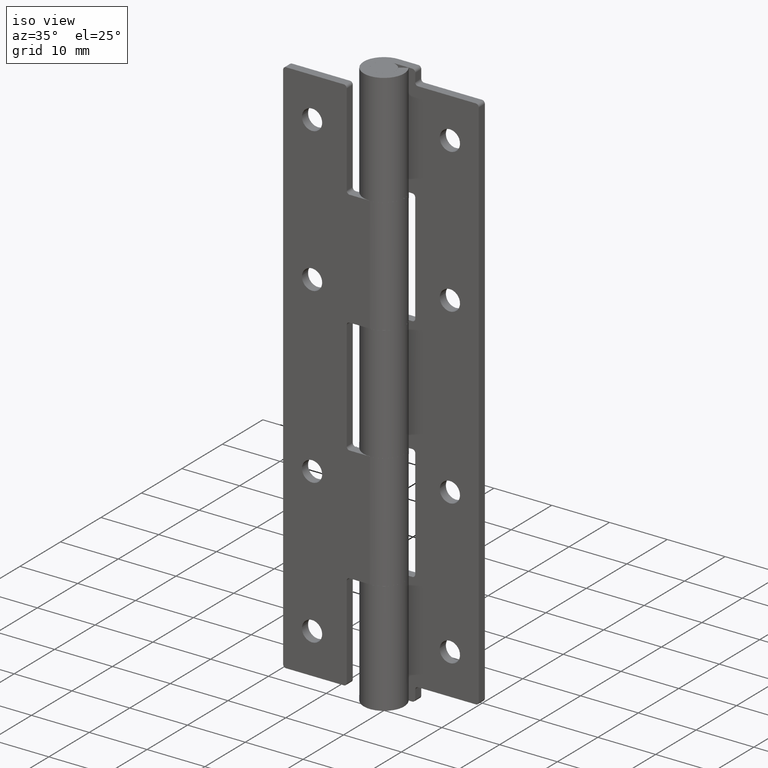
[diagram: clean part render]
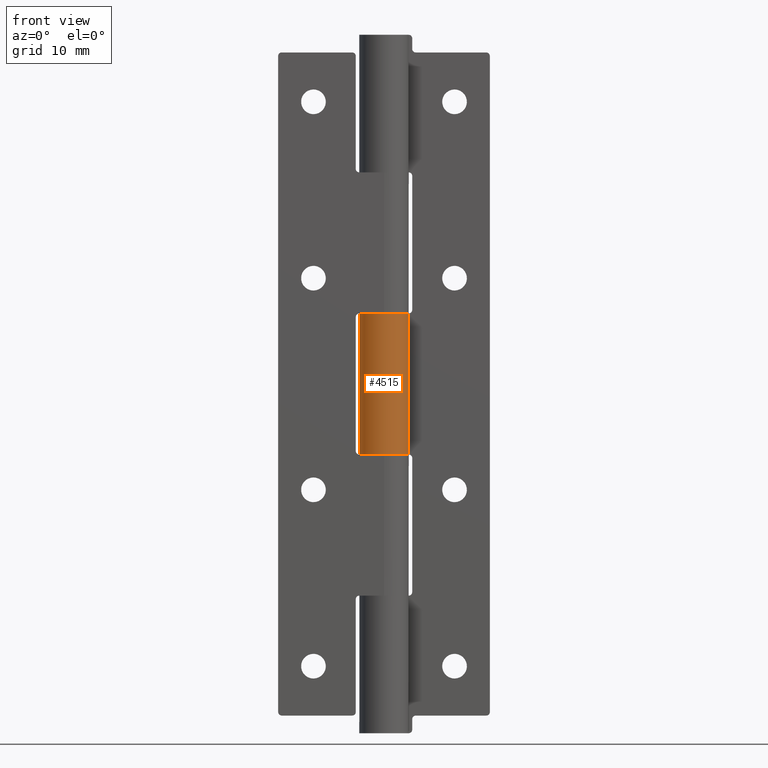
[diagram: tour spotlight — one face highlighted and labeled with its STEP entity id]
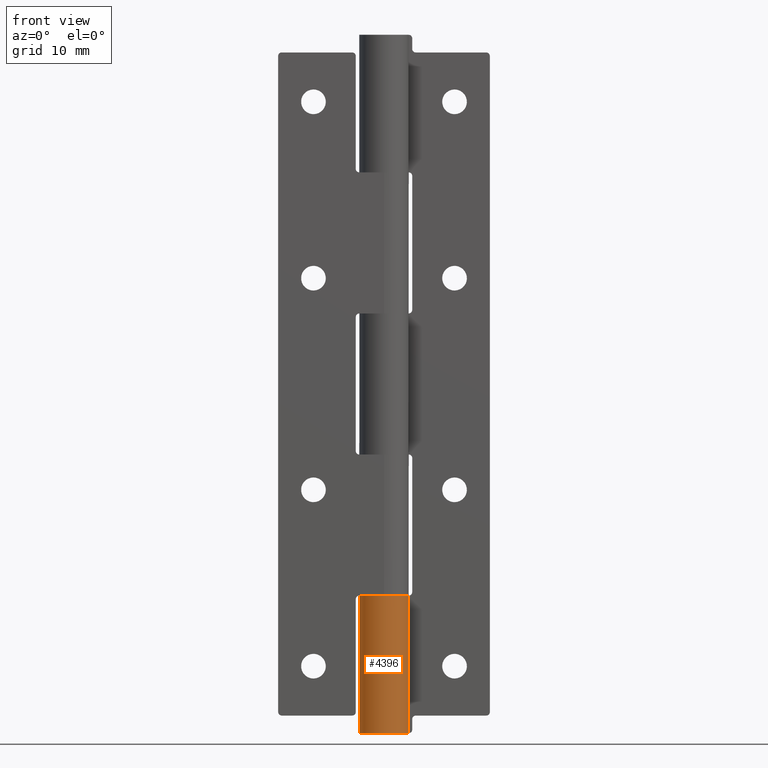
[diagram: tour spotlight — one face highlighted and labeled with its STEP entity id]
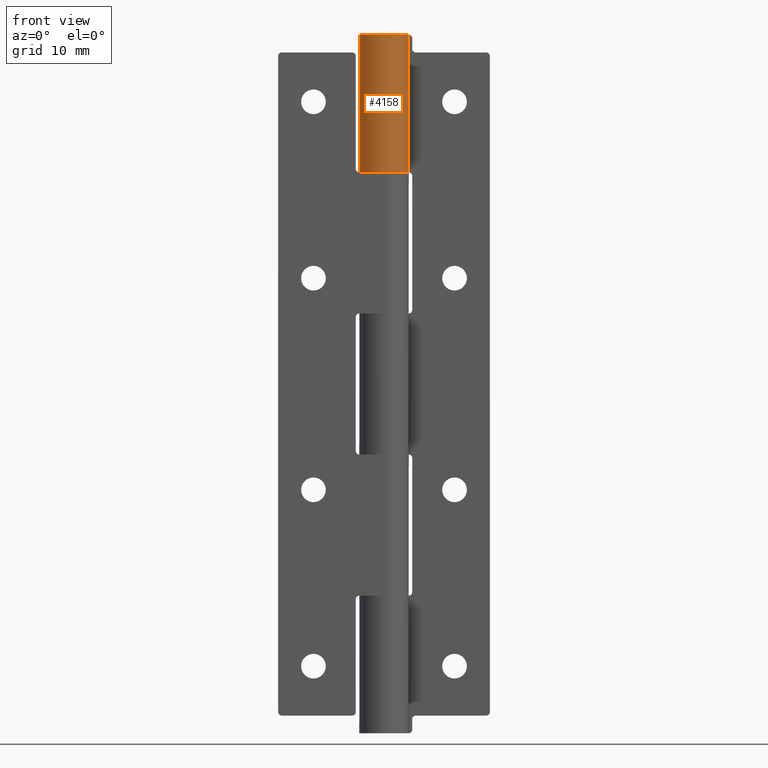
[diagram: tour spotlight — one face highlighted and labeled with its STEP entity id]
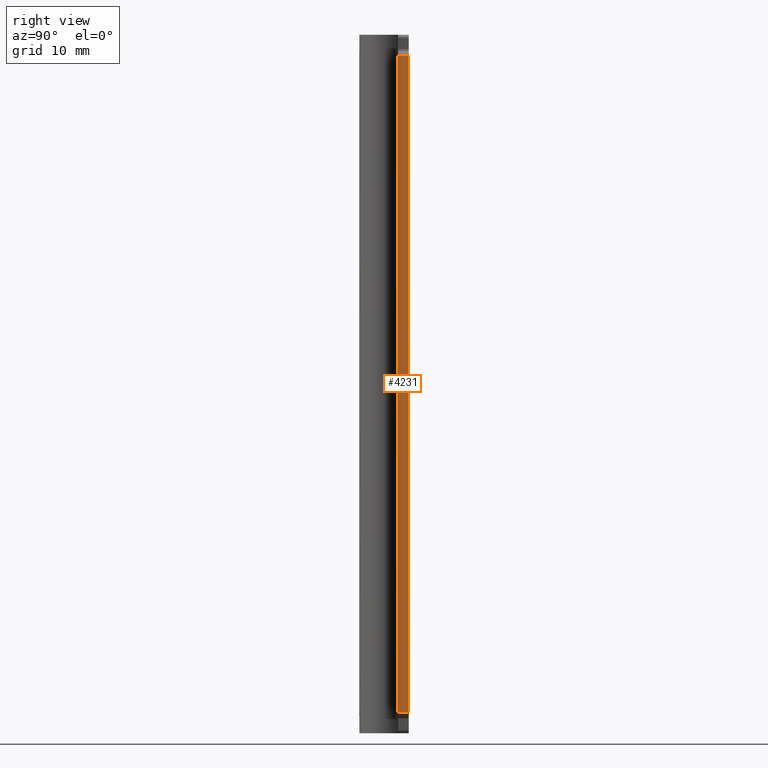
[diagram: tour spotlight — one face highlighted and labeled with its STEP entity id]
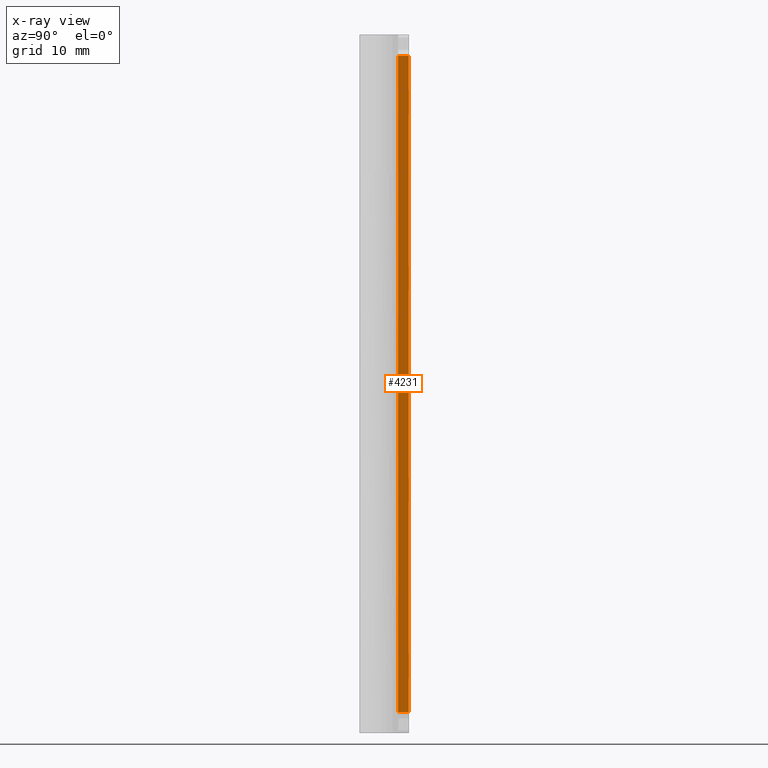
[diagram: x-ray of the same camera — body ghosted, this tour face saturated]
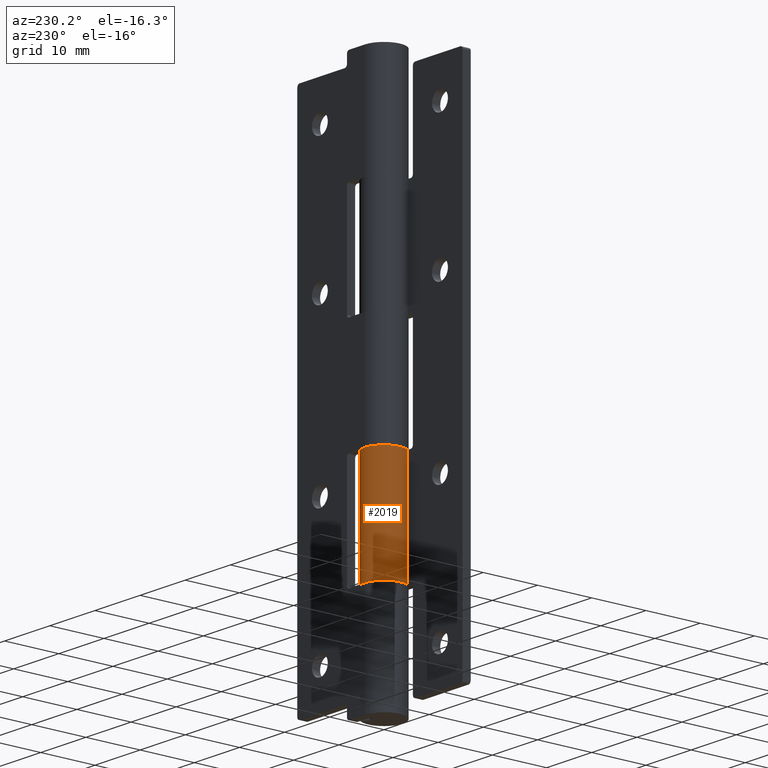
[diagram: tour spotlight — one face highlighted and labeled with its STEP entity id]
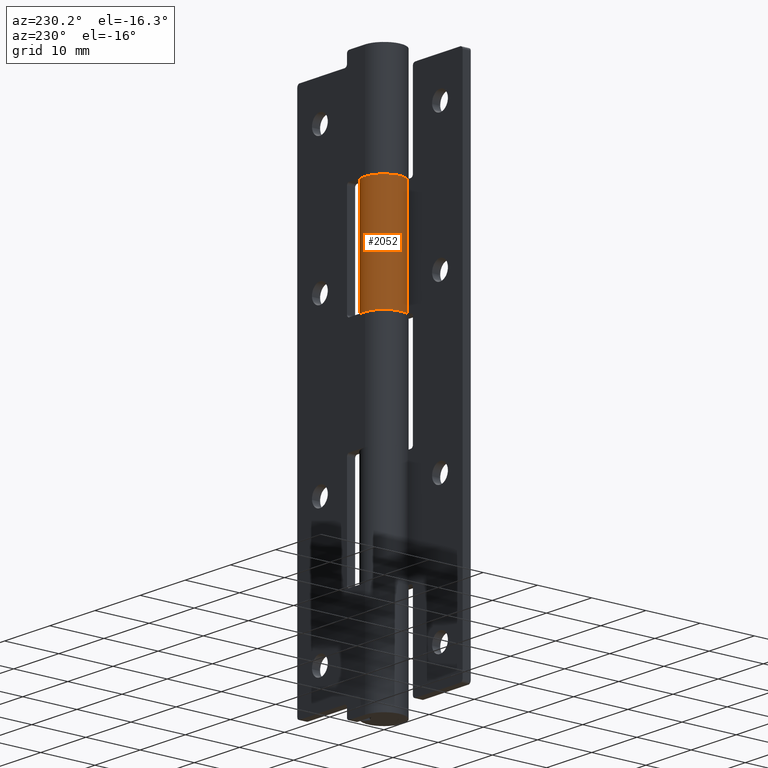
[diagram: tour spotlight — one face highlighted and labeled with its STEP entity id]
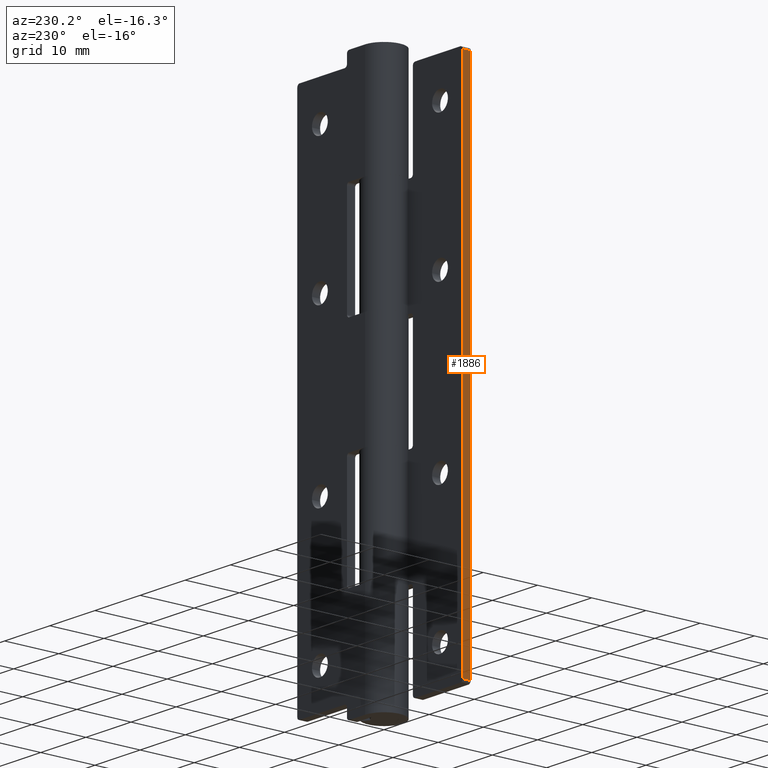
[diagram: tour spotlight — one face highlighted and labeled with its STEP entity id]
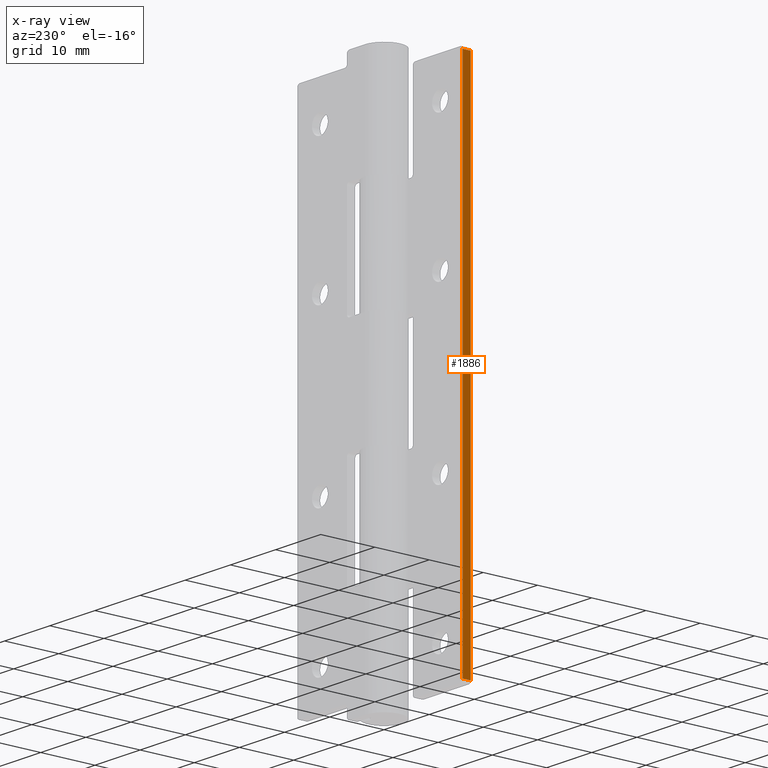
[diagram: x-ray of the same camera — body ghosted, this tour face saturated]
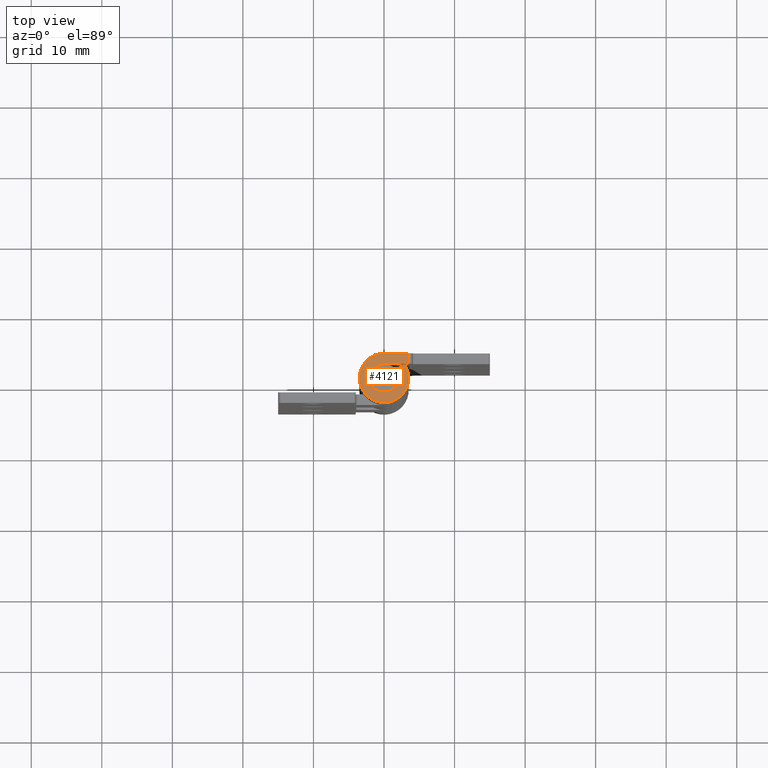
[diagram: tour spotlight — one face highlighted and labeled with its STEP entity id]
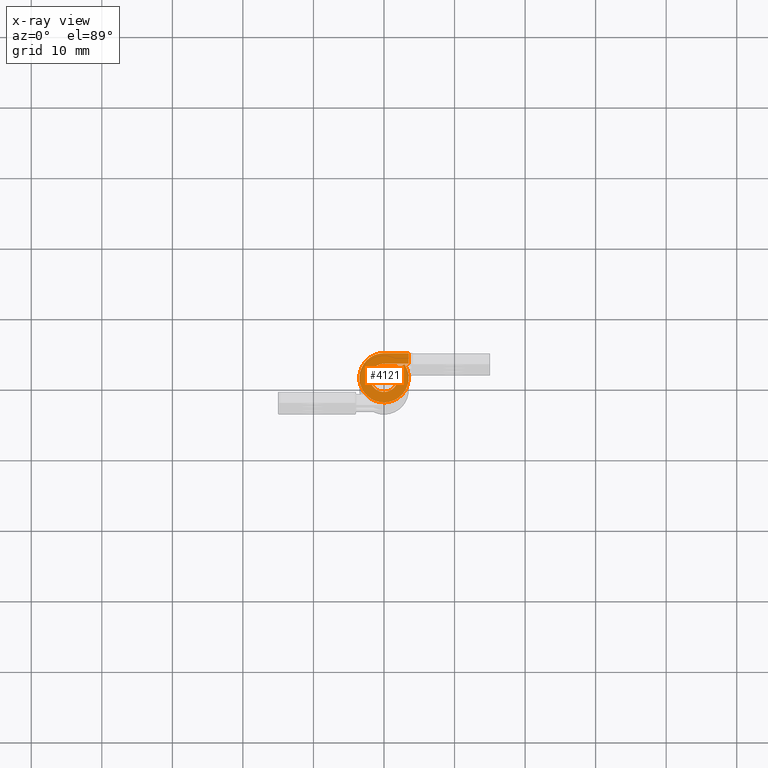
[diagram: x-ray of the same camera — body ghosted, this tour face saturated]
A machine part: a face-by-face anatomy tour. The part has 80 B-rep faces; the first image is the clean iso view, then the 8 largest visible faces are spotlighted one at a time (largest first), each with its STEP entity span.

Face 1 — front view, entity #4515. In plain terms, the highlighted face is a freeform B-spline surface patch.
Definition (entity closure, byte-faithful):
#3221=CARTESIAN_POINT('',(0.000000061086522,3.500000000000000,39.500000000000000));
#3222=VERTEX_POINT('',#3221);
#3257=CARTESIAN_POINT('',(2.906458325866725,1.950000000000000,39.500000000000000));
#3258=VERTEX_POINT('',#3257);
#3264=CARTESIAN_POINT('',(2.906458325866724,1.950000000000000,39.500000000000000));
#3265=CARTESIAN_POINT('',(4.428995679547648,-0.319328906691800,39.500000000000007));
#3266=CARTESIAN_POINT('',(2.596662629123979,-2.346772931178248,39.500000000000000));
#3267=CARTESIAN_POINT('',(0.764329578700308,-4.374216955664697,39.500000000000007));
#3268=CARTESIAN_POINT('',(-1.646966936150425,-3.088284298963954,39.500000000000000));
#3269=CARTESIAN_POINT('',(-4.058263451001157,-1.802351642263212,39.500000000000007));
#3270=CARTESIAN_POINT('',(-3.395511371337634,0.848824202716217,39.500000000000000));
#3271=CARTESIAN_POINT('',(-2.732759291674111,3.500000047695646,39.500000000000007));
#3272=CARTESIAN_POINT('',(0.000000061086521,3.500000000000000,39.500000000000000));
#3280=(BOUNDED_CURVE()B_SPLINE_CURVE(2,(#3264,#3265,#3266,#3267,#3268,#3269,#3270,#3271,#3272),.UNSPECIFIED.,.F.,.U.)B_SPLINE_CURVE_WITH_KNOTS((3,2,2,2,3),(0.0,0.250000000000000,0.500000000000000,0.750000000000000,1.0),.UNSPECIFIED.)CURVE()GEOMETRIC_REPRESENTATION_ITEM()RATIONAL_B_SPLINE_CURVE((1.0,0.788200857600339,1.0,0.788200857600339,1.0,0.788200857600339,1.0,0.788200857600339,1.0))REPRESENTATION_ITEM(''));
#3281=EDGE_CURVE('',#3258,#3222,#3280,.T.);
#3389=CARTESIAN_POINT('',(0.000000061086522,3.500000000000000,59.500000000000000));
#3390=VERTEX_POINT('',#3389);
#3396=CARTESIAN_POINT('',(2.906458325866725,1.950000000000000,59.500000000000000));
#3397=VERTEX_POINT('',#3396);
#3398=CARTESIAN_POINT('',(0.000000061086523,3.500000000000000,59.500000000000000));
#3399=CARTESIAN_POINT('',(-2.732759291674109,3.500000047695647,59.500000000000007));
#3400=CARTESIAN_POINT('',(-3.395511371337634,0.848824202716219,59.500000000000000));
#3401=CARTESIAN_POINT('',(-4.058263451001158,-1.802351642263212,59.500000000000007));
#3402=CARTESIAN_POINT('',(-1.646966936150424,-3.088284298963955,59.500000000000000));
#3403=CARTESIAN_POINT('',(0.764329578700309,-4.374216955664698,59.500000000000007));
#3404=CARTESIAN_POINT('',(2.596662629123979,-2.346772931178247,59.500000000000000));
#3405=CARTESIAN_POINT('',(4.428995679547648,-0.319328906691799,59.500000000000007));
#3406=CARTESIAN_POINT('',(2.906458325866723,1.950000000000001,59.500000000000000));
#3414=(BOUNDED_CURVE()B_SPLINE_CURVE(2,(#3398,#3399,#3400,#3401,#3402,#3403,#3404,#3405,#3406),.UNSPECIFIED.,.F.,.U.)B_SPLINE_CURVE_WITH_KNOTS((3,2,2,2,3),(0.0,0.250000000000000,0.500000000000000,0.750000000000000,1.0),.UNSPECIFIED.)CURVE()GEOMETRIC_REPRESENTATION_ITEM()RATIONAL_B_SPLINE_CURVE((1.0,0.788200857600339,1.0,0.788200857600339,1.0,0.788200857600339,1.0,0.788200857600339,1.0))REPRESENTATION_ITEM(''));
#3415=EDGE_CURVE('',#3390,#3397,#3414,.T.);
#4171=CARTESIAN_POINT('',(2.906458325866725,1.950000000000000,59.500000000000000));
#4172=CARTESIAN_POINT('',(2.906458325866725,1.950000000000000,39.500000000000000));
#4173=QUASI_UNIFORM_CURVE('',1,(#4171,#4172),.UNSPECIFIED.,.F.,.U.);
#4174=EDGE_CURVE('',#3397,#3258,#4173,.T.);
#4308=CARTESIAN_POINT('',(0.000000061086522,3.500000000000000,59.500000000000000));
#4309=CARTESIAN_POINT('',(0.000000061086522,3.500000000000000,39.500000000000000));
#4310=QUASI_UNIFORM_CURVE('',1,(#4308,#4309),.UNSPECIFIED.,.F.,.U.);
#4311=EDGE_CURVE('',#3390,#3222,#4310,.T.);
#4487=CARTESIAN_POINT('',(0.100263679686654,3.498563590180359,60.000000000000007));
#4488=CARTESIAN_POINT('',(0.100263679686654,3.498563590180359,38.987499999999997));
#4489=CARTESIAN_POINT('',(-4.324391348104696,3.625367686488793,60.000000000000007));
#4490=CARTESIAN_POINT('',(-4.324391348104696,3.625367686488793,38.987500000000004));
#4491=CARTESIAN_POINT('',(-3.427381751617110,-0.709263229472684,60.000000000000007));
#4492=CARTESIAN_POINT('',(-3.427381751617110,-0.709263229472684,38.987499999999997));
#4493=CARTESIAN_POINT('',(-2.530372155129526,-5.043894145434162,60.000000000000007));
#4494=CARTESIAN_POINT('',(-2.530372155129526,-5.043894145434162,38.987500000000004));
#4495=CARTESIAN_POINT('',(1.480553574345205,-3.171428875679482,60.000000000000007));
#4496=CARTESIAN_POINT('',(1.480553574345205,-3.171428875679482,38.987499999999997));
#4497=CARTESIAN_POINT('',(5.491479303819935,-1.298963605924803,60.000000000000007));
#4498=CARTESIAN_POINT('',(5.491479303819935,-1.298963605924803,38.987500000000004));
#4499=CARTESIAN_POINT('',(2.744503448160206,2.172026892797768,60.000000000000007));
#4500=CARTESIAN_POINT('',(2.744503448160206,2.172026892797768,38.987499999999997));
#4508=(BOUNDED_SURFACE()B_SPLINE_SURFACE(1,2,((#4487,#4489,#4491,#4493,#4495,#4497,#4499),(#4488,#4490,#4492,#4494,#4496,#4498,#4500)),.UNSPECIFIED.,.F.,.F.,.U.)B_SPLINE_SURFACE_WITH_KNOTS((2,2),(3,2,2,3),(0.0,21.012500000000010),(0.0,6.777915536387798,13.555831072775600,20.333746609163398),.UNSPECIFIED.)GEOMETRIC_REPRESENTATION_ITEM()RATIONAL_B_SPLINE_SURFACE(((1.0,0.620235491268260,1.0,0.620235491268260,1.0,0.620235491268260,1.0),(1.0,0.620235491268260,1.0,0.620235491268260,1.0,0.620235491268260,1.0)))REPRESENTATION_ITEM('')SURFACE());
#4509=ORIENTED_EDGE('',*,*,#3281,.F.);
#4510=ORIENTED_EDGE('',*,*,#4174,.F.);
#4511=ORIENTED_EDGE('',*,*,#3415,.F.);
#4512=ORIENTED_EDGE('',*,*,#4311,.T.);
#4513=EDGE_LOOP('',(#4509,#4510,#4511,#4512));
#4514=FACE_OUTER_BOUND('',#4513,.T.);
#4515=ADVANCED_FACE('',(#4514),#4508,.T.);

Face 2 — front view, entity #4396. In plain terms, the highlighted face is a freeform B-spline surface patch.
Definition (entity closure, byte-faithful):
#3319=CARTESIAN_POINT('',(0.000000061086522,3.500000000000000,19.500000000000000));
#3320=VERTEX_POINT('',#3319);
#3326=CARTESIAN_POINT('',(2.906458325866725,1.950000000000000,19.500000000000000));
#3327=VERTEX_POINT('',#3326);
#3328=CARTESIAN_POINT('',(0.000000061086523,3.500000000000000,19.500000000000000));
#3329=CARTESIAN_POINT('',(-2.732759291674109,3.500000047695647,19.500000000000004));
#3330=CARTESIAN_POINT('',(-3.395511371337634,0.848824202716219,19.500000000000000));
#3331=CARTESIAN_POINT('',(-4.058263451001158,-1.802351642263212,19.500000000000004));
#3332=CARTESIAN_POINT('',(-1.646966936150424,-3.088284298963955,19.500000000000000));
#3333=CARTESIAN_POINT('',(0.764329578700309,-4.374216955664698,19.500000000000004));
#3334=CARTESIAN_POINT('',(2.596662629123979,-2.346772931178247,19.500000000000000));
#3335=CARTESIAN_POINT('',(4.428995679547648,-0.319328906691799,19.500000000000004));
#3336=CARTESIAN_POINT('',(2.906458325866723,1.950000000000001,19.500000000000000));
#3344=(BOUNDED_CURVE()B_SPLINE_CURVE(2,(#3328,#3329,#3330,#3331,#3332,#3333,#3334,#3335,#3336),.UNSPECIFIED.,.F.,.U.)B_SPLINE_CURVE_WITH_KNOTS((3,2,2,2,3),(0.0,0.250000000000000,0.500000000000000,0.750000000000000,1.0),.UNSPECIFIED.)CURVE()GEOMETRIC_REPRESENTATION_ITEM()RATIONAL_B_SPLINE_CURVE((1.0,0.788200857600339,1.0,0.788200857600339,1.0,0.788200857600339,1.0,0.788200857600339,1.0))REPRESENTATION_ITEM(''));
#3345=EDGE_CURVE('',#3320,#3327,#3344,.T.);
#3987=CARTESIAN_POINT('',(0.000000061086522,3.500000000000000,0.0));
#3988=VERTEX_POINT('',#3987);
#4023=CARTESIAN_POINT('',(2.906458325866725,1.950000000000000,0.0));
#4024=VERTEX_POINT('',#4023);
#4030=CARTESIAN_POINT('',(2.906458325866724,1.950000000000000,0.0));
#4031=CARTESIAN_POINT('',(4.428995679547648,-0.319328906691800,0.0));
#4032=CARTESIAN_POINT('',(2.596662629123979,-2.346772931178248,0.0));
#4033=CARTESIAN_POINT('',(0.764329578700308,-4.374216955664697,0.0));
#4034=CARTESIAN_POINT('',(-1.646966936150425,-3.088284298963954,0.0));
#4035=CARTESIAN_POINT('',(-4.058263451001157,-1.802351642263212,0.0));
#4036=CARTESIAN_POINT('',(-3.395511371337634,0.848824202716217,0.0));
#4037=CARTESIAN_POINT('',(-2.732759291674111,3.500000047695646,0.0));
#4038=CARTESIAN_POINT('',(0.000000061086521,3.500000000000000,0.0));
#4046=(BOUNDED_CURVE()B_SPLINE_CURVE(2,(#4030,#4031,#4032,#4033,#4034,#4035,#4036,#4037,#4038),.UNSPECIFIED.,.F.,.U.)B_SPLINE_CURVE_WITH_KNOTS((3,2,2,2,3),(0.0,0.250000000000000,0.500000000000000,0.750000000000000,1.0),.UNSPECIFIED.)CURVE()GEOMETRIC_REPRESENTATION_ITEM()RATIONAL_B_SPLINE_CURVE((1.0,0.788200857600339,1.0,0.788200857600339,1.0,0.788200857600339,1.0,0.788200857600339,1.0))REPRESENTATION_ITEM(''));
#4047=EDGE_CURVE('',#4024,#3988,#4046,.T.);
#4332=CARTESIAN_POINT('',(0.000000061086522,3.500000000000000,19.500000000000000));
#4333=CARTESIAN_POINT('',(0.000000061086522,3.500000000000000,0.0));
#4334=QUASI_UNIFORM_CURVE('',1,(#4332,#4333),.UNSPECIFIED.,.F.,.U.);
#4335=EDGE_CURVE('',#3320,#3988,#4334,.T.);
#4364=CARTESIAN_POINT('',(0.100263679686654,3.498563590180359,19.987500000000001));
#4365=CARTESIAN_POINT('',(0.100263679686654,3.498563590180359,-0.499687500000000));
#4366=CARTESIAN_POINT('',(-4.324391348104696,3.625367686488793,19.987500000000004));
#4367=CARTESIAN_POINT('',(-4.324391348104696,3.625367686488793,-0.499687500000000));
#4368=CARTESIAN_POINT('',(-3.427381751617110,-0.709263229472684,19.987500000000001));
#4369=CARTESIAN_POINT('',(-3.427381751617110,-0.709263229472684,-0.499687500000000));
#4370=CARTESIAN_POINT('',(-2.530372155129526,-5.043894145434162,19.987500000000004));
#4371=CARTESIAN_POINT('',(-2.530372155129526,-5.043894145434162,-0.499687500000000));
#4372=CARTESIAN_POINT('',(1.480553574345205,-3.171428875679482,19.987500000000001));
#4373=CARTESIAN_POINT('',(1.480553574345205,-3.171428875679482,-0.499687500000000));
#4374=CARTESIAN_POINT('',(5.491479303819935,-1.298963605924803,19.987500000000004));
#4375=CARTESIAN_POINT('',(5.491479303819935,-1.298963605924803,-0.499687500000000));
#4376=CARTESIAN_POINT('',(2.744503448160206,2.172026892797768,19.987500000000001));
#4377=CARTESIAN_POINT('',(2.744503448160206,2.172026892797768,-0.499687500000000));
#4385=(BOUNDED_SURFACE()B_SPLINE_SURFACE(1,2,((#4364,#4366,#4368,#4370,#4372,#4374,#4376),(#4365,#4367,#4369,#4371,#4373,#4375,#4377)),.UNSPECIFIED.,.F.,.F.,.U.)B_SPLINE_SURFACE_WITH_KNOTS((2,2),(3,2,2,3),(0.0,20.487187500000012),(0.0,6.777915536387798,13.555831072775600,20.333746609163398),.UNSPECIFIED.)GEOMETRIC_REPRESENTATION_ITEM()RATIONAL_B_SPLINE_SURFACE(((1.0,0.620235491268260,1.0,0.620235491268260,1.0,0.620235491268260,1.0),(1.0,0.620235491268260,1.0,0.620235491268260,1.0,0.620235491268260,1.0)))REPRESENTATION_ITEM('')SURFACE());
#4386=CARTESIAN_POINT('',(2.906458325866725,1.950000000000000,19.500000000000000));
#4387=CARTESIAN_POINT('',(2.906458325866725,1.950000000000000,0.0));
#4388=QUASI_UNIFORM_CURVE('',1,(#4386,#4387),.UNSPECIFIED.,.F.,.U.);
#4389=EDGE_CURVE('',#3327,#4024,#4388,.T.);
#4390=ORIENTED_EDGE('',*,*,#4389,.F.);
#4391=ORIENTED_EDGE('',*,*,#3345,.F.);
#4392=ORIENTED_EDGE('',*,*,#4335,.T.);
#4393=ORIENTED_EDGE('',*,*,#4047,.F.);
#4394=EDGE_LOOP('',(#4390,#4391,#4392,#4393));
#4395=FACE_OUTER_BOUND('',#4394,.T.);
#4396=ADVANCED_FACE('',(#4395),#4385,.T.);

Face 3 — front view, entity #4158. In plain terms, the highlighted face is a freeform B-spline surface patch.
Definition (entity closure, byte-faithful):
#3471=CARTESIAN_POINT('',(0.0,3.500000000000000,79.500000000000000));
#3472=VERTEX_POINT('',#3471);
#3507=CARTESIAN_POINT('',(2.906458325866725,1.950000000000000,79.500000000000000));
#3508=VERTEX_POINT('',#3507);
#3514=CARTESIAN_POINT('',(2.906458325866724,1.950000000000000,79.500000000000000));
#3515=CARTESIAN_POINT('',(4.428995672699894,-0.319328896485281,79.500000000000014));
#3516=CARTESIAN_POINT('',(2.596662639363708,-2.346772919848170,79.500000000000000));
#3517=CARTESIAN_POINT('',(0.764329606027520,-4.374216943211062,79.500000000000014));
#3518=CARTESIAN_POINT('',(-1.646966909200061,-3.088284313336452,79.500000000000000));
#3519=CARTESIAN_POINT('',(-4.058263424427635,-1.802351683461845,79.500000000000014));
#3520=CARTESIAN_POINT('',(-3.395511382448717,0.848824158269075,79.500000000000000));
#3521=CARTESIAN_POINT('',(-2.732759340469795,3.500000000000000,79.500000000000014));
#3522=CARTESIAN_POINT('',(0.0,3.500000000000000,79.500000000000000));
#3530=(BOUNDED_CURVE()B_SPLINE_CURVE(2,(#3514,#3515,#3516,#3517,#3518,#3519,#3520,#3521,#3522),.UNSPECIFIED.,.F.,.U.)B_SPLINE_CURVE_WITH_KNOTS((3,2,2,2,3),(0.0,0.250000000000000,0.500000000000000,0.750000000000000,1.0),.UNSPECIFIED.)CURVE()GEOMETRIC_REPRESENTATION_ITEM()RATIONAL_B_SPLINE_CURVE((1.0,0.788200858942973,1.0,0.788200858942973,1.0,0.788200858942973,1.0,0.788200858942973,1.0))REPRESENTATION_ITEM(''));
#3531=EDGE_CURVE('',#3508,#3472,#3530,.T.);
#4065=CARTESIAN_POINT('',(0.000000061086522,3.500000000000000,99.0));
#4066=VERTEX_POINT('',#4065);
#4072=CARTESIAN_POINT('',(2.906458325866725,1.950000000000000,99.0));
#4073=VERTEX_POINT('',#4072);
#4074=CARTESIAN_POINT('',(2.906458325866724,1.950000000000000,99.0));
#4075=CARTESIAN_POINT('',(4.428995679547648,-0.319328906691800,99.0));
#4076=CARTESIAN_POINT('',(2.596662629123979,-2.346772931178248,99.0));
#4077=CARTESIAN_POINT('',(0.764329578700308,-4.374216955664697,99.0));
#4078=CARTESIAN_POINT('',(-1.646966936150425,-3.088284298963954,99.0));
#4079=CARTESIAN_POINT('',(-4.058263451001157,-1.802351642263212,99.0));
#4080=CARTESIAN_POINT('',(-3.395511371337634,0.848824202716217,99.0));
#4081=CARTESIAN_POINT('',(-2.732759291674111,3.500000047695646,99.0));
#4082=CARTESIAN_POINT('',(0.000000061086521,3.500000000000000,99.0));
#4090=(BOUNDED_CURVE()B_SPLINE_CURVE(2,(#4074,#4075,#4076,#4077,#4078,#4079,#4080,#4081,#4082),.UNSPECIFIED.,.F.,.U.)B_SPLINE_CURVE_WITH_KNOTS((3,2,2,2,3),(0.0,0.250000000000000,0.500000000000000,0.750000000000000,1.0),.UNSPECIFIED.)CURVE()GEOMETRIC_REPRESENTATION_ITEM()RATIONAL_B_SPLINE_CURVE((1.0,0.788200857600339,1.0,0.788200857600339,1.0,0.788200857600339,1.0,0.788200857600339,1.0))REPRESENTATION_ITEM(''));
#4091=EDGE_CURVE('',#4073,#4066,#4090,.T.);
#4122=CARTESIAN_POINT('',(0.100263679686654,3.498563590180359,99.487500000000011));
#4123=CARTESIAN_POINT('',(0.100263679686654,3.498563590180359,79.000312499999978));
#4124=CARTESIAN_POINT('',(-4.324391348104696,3.625367686488793,99.487500000000011));
#4125=CARTESIAN_POINT('',(-4.324391348104696,3.625367686488793,79.000312499999978));
#4126=CARTESIAN_POINT('',(-3.427381751617110,-0.709263229472684,99.487500000000011));
#4127=CARTESIAN_POINT('',(-3.427381751617110,-0.709263229472684,79.000312499999978));
#4128=CARTESIAN_POINT('',(-2.530372155129526,-5.043894145434162,99.487500000000011));
#4129=CARTESIAN_POINT('',(-2.530372155129526,-5.043894145434162,79.000312499999978));
#4130=CARTESIAN_POINT('',(1.480553574345205,-3.171428875679482,99.487500000000011));
#4131=CARTESIAN_POINT('',(1.480553574345205,-3.171428875679482,79.000312499999978));
#4132=CARTESIAN_POINT('',(5.491479303819935,-1.298963605924803,99.487500000000011));
#4133=CARTESIAN_POINT('',(5.491479303819935,-1.298963605924803,79.000312499999978));
#4134=CARTESIAN_POINT('',(2.744503448160206,2.172026892797768,99.487500000000011));
#4135=CARTESIAN_POINT('',(2.744503448160206,2.172026892797768,79.000312499999978));
#4143=(BOUNDED_SURFACE()B_SPLINE_SURFACE(1,2,((#4122,#4124,#4126,#4128,#4130,#4132,#4134),(#4123,#4125,#4127,#4129,#4131,#4133,#4135)),.UNSPECIFIED.,.F.,.F.,.U.)B_SPLINE_SURFACE_WITH_KNOTS((2,2),(3,2,2,3),(0.0,20.487187500000029),(0.0,6.777915536387798,13.555831072775600,20.333746609163398),.UNSPECIFIED.)GEOMETRIC_REPRESENTATION_ITEM()RATIONAL_B_SPLINE_SURFACE(((1.0,0.620235491268260,1.0,0.620235491268260,1.0,0.620235491268260,1.0),(1.0,0.620235491268260,1.0,0.620235491268260,1.0,0.620235491268260,1.0)))REPRESENTATION_ITEM('')SURFACE());
#4144=CARTESIAN_POINT('',(0.000000061086522,3.500000000000000,99.0));
#4145=CARTESIAN_POINT('',(0.0,3.500000000000000,79.500000000000000));
#4146=QUASI_UNIFORM_CURVE('',1,(#4144,#4145),.UNSPECIFIED.,.F.,.U.);
#4147=EDGE_CURVE('',#4066,#3472,#4146,.T.);
#4148=ORIENTED_EDGE('',*,*,#4147,.T.);
#4149=ORIENTED_EDGE('',*,*,#3531,.F.);
#4150=CARTESIAN_POINT('',(2.906458325866725,1.950000000000000,99.0));
#4151=CARTESIAN_POINT('',(2.906458325866725,1.950000000000000,79.500000000000000));
#4152=QUASI_UNIFORM_CURVE('',1,(#4150,#4151),.UNSPECIFIED.,.F.,.U.);
#4153=EDGE_CURVE('',#4073,#3508,#4152,.T.);
#4154=ORIENTED_EDGE('',*,*,#4153,.F.);
#4155=ORIENTED_EDGE('',*,*,#4091,.T.);
#4156=EDGE_LOOP('',(#4148,#4149,#4154,#4155));
#4157=FACE_OUTER_BOUND('',#4156,.T.);
#4158=ADVANCED_FACE('',(#4157),#4143,.T.);

Face 4 — right view, entity #4231. An x-ray twin of the same camera follows (body ghosted, this face saturated) — the face is partly hidden behind the body. In plain terms, the highlighted face is a freeform B-spline surface patch.
Definition (entity closure, byte-faithful):
#3550=CARTESIAN_POINT('',(14.999999999999799,2.0,96.0));
#3551=VERTEX_POINT('',#3550);
#3567=CARTESIAN_POINT('',(14.999999999999799,3.500000000000000,96.0));
#3568=VERTEX_POINT('',#3567);
#3569=CARTESIAN_POINT('',(14.999999999999799,3.500000000000000,96.0));
#3570=CARTESIAN_POINT('',(14.999999999999799,2.0,96.0));
#3571=QUASI_UNIFORM_CURVE('',1,(#3569,#3570),.UNSPECIFIED.,.F.,.U.);
#3572=EDGE_CURVE('',#3568,#3551,#3571,.T.);
#3857=CARTESIAN_POINT('',(14.999999999999799,2.0,3.0));
#3858=VERTEX_POINT('',#3857);
#3879=CARTESIAN_POINT('',(14.999999999999799,3.500000000000000,3.0));
#3880=VERTEX_POINT('',#3879);
#3894=CARTESIAN_POINT('',(14.999999999999799,2.0,3.0));
#3895=CARTESIAN_POINT('',(14.999999999999799,3.500000000000000,3.0));
#3896=QUASI_UNIFORM_CURVE('',1,(#3894,#3895),.UNSPECIFIED.,.F.,.U.);
#3897=EDGE_CURVE('',#3858,#3880,#3896,.T.);
#4212=CARTESIAN_POINT('',(14.999999999999799,1.925075002907291,100.645349819748010));
#4213=CARTESIAN_POINT('',(14.999999999999799,1.925075002907291,-1.645352314202334));
#4214=CARTESIAN_POINT('',(14.999999999999799,3.574925037325845,100.645349819748010));
#4215=CARTESIAN_POINT('',(14.999999999999799,3.574925037325845,-1.645352314202334));
#4216=B_SPLINE_SURFACE_WITH_KNOTS('',1,1,((#4212,#4214),(#4213,#4215)),.UNSPECIFIED.,.F.,.F.,.U.,(2,2),(2,2),(0.0,102.290702133950300),(0.041708334948495,0.958291687403247),.UNSPECIFIED.);
#4217=CARTESIAN_POINT('',(14.999999999999799,3.500000000000000,96.0));
#4218=CARTESIAN_POINT('',(14.999999999999799,3.500000000000000,3.0));
#4219=QUASI_UNIFORM_CURVE('',1,(#4217,#4218),.UNSPECIFIED.,.F.,.U.);
#4220=EDGE_CURVE('',#3568,#3880,#4219,.T.);
#4221=ORIENTED_EDGE('',*,*,#4220,.F.);
#4222=ORIENTED_EDGE('',*,*,#3572,.T.);
#4223=CARTESIAN_POINT('',(14.999999999999799,2.0,96.0));
#4224=CARTESIAN_POINT('',(14.999999999999799,2.0,3.0));
#4225=QUASI_UNIFORM_CURVE('',1,(#4223,#4224),.UNSPECIFIED.,.F.,.U.);
#4226=EDGE_CURVE('',#3551,#3858,#4225,.T.);
#4227=ORIENTED_EDGE('',*,*,#4226,.T.);
#4228=ORIENTED_EDGE('',*,*,#3897,.T.);
#4229=EDGE_LOOP('',(#4221,#4222,#4227,#4228));
#4230=FACE_OUTER_BOUND('',#4229,.T.);
#4231=ADVANCED_FACE('',(#4230),#4216,.T.);

Face 5 — auxiliary view, entity #2019. In plain terms, the highlighted face is a freeform B-spline surface patch.
Definition (entity closure, byte-faithful):
#1540=CARTESIAN_POINT('',(0.0,-3.499999999999950,39.500000000000000));
#1541=VERTEX_POINT('',#1540);
#1547=CARTESIAN_POINT('',(-2.906458325866725,-1.950000000000000,39.500000000000000));
#1548=VERTEX_POINT('',#1547);
#1549=CARTESIAN_POINT('',(-2.906458325866723,-1.950000000000003,39.500000000000000));
#1550=CARTESIAN_POINT('',(-4.428995672699895,0.319328896485279,39.500000000000000));
#1551=CARTESIAN_POINT('',(-2.596662639363708,2.346772919848169,39.500000000000000));
#1552=CARTESIAN_POINT('',(-0.764329606027522,4.374216943211060,39.500000000000000));
#1553=CARTESIAN_POINT('',(1.646966909200059,3.088284313336453,39.500000000000000));
#1554=CARTESIAN_POINT('',(4.058263424427638,1.802351683461846,39.500000000000000));
#1555=CARTESIAN_POINT('',(3.395511382448717,-0.848824158269075,39.500000000000000));
#1556=CARTESIAN_POINT('',(2.732759340469795,-3.500000000000000,39.500000000000000));
#1557=CARTESIAN_POINT('',(0.0,-3.500000000000000,39.500000000000000));
#1565=(BOUNDED_CURVE()B_SPLINE_CURVE(2,(#1549,#1550,#1551,#1552,#1553,#1554,#1555,#1556,#1557),.UNSPECIFIED.,.F.,.U.)B_SPLINE_CURVE_WITH_KNOTS((3,2,2,2,3),(0.0,0.250000000000000,0.500000000000000,0.750000000000000,1.0),.UNSPECIFIED.)CURVE()GEOMETRIC_REPRESENTATION_ITEM()RATIONAL_B_SPLINE_CURVE((1.0,0.788200858942973,1.0,0.788200858942973,1.0,0.788200858942973,1.0,0.788200858942973,1.0))REPRESENTATION_ITEM(''));
#1566=EDGE_CURVE('',#1548,#1541,#1565,.T.);
#1782=CARTESIAN_POINT('',(0.0,-3.499999999999950,19.500000000000000));
#1783=VERTEX_POINT('',#1782);
#1818=CARTESIAN_POINT('',(-2.906458325866725,-1.950000000000000,19.500000000000000));
#1819=VERTEX_POINT('',#1818);
#1825=CARTESIAN_POINT('',(0.0,-3.499999999999950,19.500000000000000));
#1826=CARTESIAN_POINT('',(2.732759340469792,-3.500000000000000,19.500000000000004));
#1827=CARTESIAN_POINT('',(3.395511382448716,-0.848824158269080,19.500000000000000));
#1828=CARTESIAN_POINT('',(4.058263424427640,1.802351683461841,19.500000000000004));
#1829=CARTESIAN_POINT('',(1.646966909200063,3.088284313336451,19.500000000000000));
#1830=CARTESIAN_POINT('',(-0.764329606027517,4.374216943211062,19.500000000000004));
#1831=CARTESIAN_POINT('',(-2.596662639363706,2.346772919848171,19.500000000000000));
#1832=CARTESIAN_POINT('',(-4.428995672699894,0.319328896485283,19.500000000000004));
#1833=CARTESIAN_POINT('',(-2.906458325866725,-1.949999999999999,19.500000000000000));
#1841=(BOUNDED_CURVE()B_SPLINE_CURVE(2,(#1825,#1826,#1827,#1828,#1829,#1830,#1831,#1832,#1833),.UNSPECIFIED.,.F.,.U.)B_SPLINE_CURVE_WITH_KNOTS((3,2,2,2,3),(0.0,0.250000000000000,0.500000000000000,0.750000000000000,1.0),.UNSPECIFIED.)CURVE()GEOMETRIC_REPRESENTATION_ITEM()RATIONAL_B_SPLINE_CURVE((1.0,0.788200858942973,1.0,0.788200858942973,1.0,0.788200858942973,1.0,0.788200858942973,1.0))REPRESENTATION_ITEM(''));
#1842=EDGE_CURVE('',#1783,#1819,#1841,.T.);
#1937=CARTESIAN_POINT('',(0.0,-3.499999999999950,39.500000000000000));
#1938=CARTESIAN_POINT('',(0.0,-3.499999999999950,19.500000000000000));
#1939=QUASI_UNIFORM_CURVE('',1,(#1937,#1938),.UNSPECIFIED.,.F.,.U.);
#1940=EDGE_CURVE('',#1541,#1783,#1939,.T.);
#1987=CARTESIAN_POINT('',(-0.100263679686654,-3.498563590180359,40.0));
#1988=CARTESIAN_POINT('',(-0.100263679686654,-3.498563590180359,18.987500000000001));
#1989=CARTESIAN_POINT('',(4.324391348104696,-3.625367686488793,40.0));
#1990=CARTESIAN_POINT('',(4.324391348104696,-3.625367686488793,18.987500000000004));
#1991=CARTESIAN_POINT('',(3.427381751617110,0.709263229472684,40.0));
#1992=CARTESIAN_POINT('',(3.427381751617110,0.709263229472684,18.987500000000001));
#1993=CARTESIAN_POINT('',(2.530372155129526,5.043894145434162,40.0));
#1994=CARTESIAN_POINT('',(2.530372155129526,5.043894145434162,18.987500000000004));
#1995=CARTESIAN_POINT('',(-1.480553574345205,3.171428875679482,40.0));
#1996=CARTESIAN_POINT('',(-1.480553574345205,3.171428875679482,18.987500000000001));
#1997=CARTESIAN_POINT('',(-5.491479303819935,1.298963605924803,40.0));
#1998=CARTESIAN_POINT('',(-5.491479303819935,1.298963605924803,18.987500000000004));
#1999=CARTESIAN_POINT('',(-2.744503448160206,-2.172026892797768,40.0));
#2000=CARTESIAN_POINT('',(-2.744503448160206,-2.172026892797768,18.987500000000001));
#2008=(BOUNDED_SURFACE()B_SPLINE_SURFACE(1,2,((#1987,#1989,#1991,#1993,#1995,#1997,#1999),(#1988,#1990,#1992,#1994,#1996,#1998,#2000)),.UNSPECIFIED.,.F.,.F.,.U.)B_SPLINE_SURFACE_WITH_KNOTS((2,2),(3,2,2,3),(0.0,21.012499999999999),(0.0,6.777915536387798,13.555831072775600,20.333746609163398),.UNSPECIFIED.)GEOMETRIC_REPRESENTATION_ITEM()RATIONAL_B_SPLINE_SURFACE(((1.0,0.620235491268260,1.0,0.620235491268260,1.0,0.620235491268260,1.0),(1.0,0.620235491268260,1.0,0.620235491268260,1.0,0.620235491268260,1.0)))REPRESENTATION_ITEM('')SURFACE());
#2009=CARTESIAN_POINT('',(-2.906458325866725,-1.950000000000000,39.500000000000000));
#2010=CARTESIAN_POINT('',(-2.906458325866725,-1.950000000000000,19.500000000000000));
#2011=QUASI_UNIFORM_CURVE('',1,(#2009,#2010),.UNSPECIFIED.,.F.,.U.);
#2012=EDGE_CURVE('',#1548,#1819,#2011,.T.);
#2013=ORIENTED_EDGE('',*,*,#2012,.F.);
#2014=ORIENTED_EDGE('',*,*,#1566,.T.);
#2015=ORIENTED_EDGE('',*,*,#1940,.T.);
#2016=ORIENTED_EDGE('',*,*,#1842,.T.);
#2017=EDGE_LOOP('',(#2013,#2014,#2015,#2016));
#2018=FACE_OUTER_BOUND('',#2017,.T.);
#2019=ADVANCED_FACE('',(#2018),#2008,.T.);

Face 6 — auxiliary view, entity #2052. In plain terms, the highlighted face is a freeform B-spline surface patch.
Definition (entity closure, byte-faithful):
#1602=CARTESIAN_POINT('',(0.0,-3.499999999999950,59.500000000000000));
#1603=VERTEX_POINT('',#1602);
#1638=CARTESIAN_POINT('',(-2.906458325866725,-1.950000000000000,59.500000000000000));
#1639=VERTEX_POINT('',#1638);
#1645=CARTESIAN_POINT('',(0.0,-3.500000000000000,59.500000000000000));
#1646=CARTESIAN_POINT('',(2.732759340469792,-3.500000000000000,59.500000000000000));
#1647=CARTESIAN_POINT('',(3.395511382448716,-0.848824158269080,59.500000000000000));
#1648=CARTESIAN_POINT('',(4.058263424427640,1.802351683461841,59.500000000000000));
#1649=CARTESIAN_POINT('',(1.646966909200063,3.088284313336451,59.500000000000000));
#1650=CARTESIAN_POINT('',(-0.764329606027517,4.374216943211062,59.500000000000000));
#1651=CARTESIAN_POINT('',(-2.596662639363706,2.346772919848171,59.500000000000000));
#1652=CARTESIAN_POINT('',(-4.428995672699894,0.319328896485283,59.500000000000000));
#1653=CARTESIAN_POINT('',(-2.906458325866725,-1.949999999999999,59.500000000000000));
#1661=(BOUNDED_CURVE()B_SPLINE_CURVE(2,(#1645,#1646,#1647,#1648,#1649,#1650,#1651,#1652,#1653),.UNSPECIFIED.,.F.,.U.)B_SPLINE_CURVE_WITH_KNOTS((3,2,2,2,3),(0.0,0.250000000000000,0.500000000000000,0.750000000000000,1.0),.UNSPECIFIED.)CURVE()GEOMETRIC_REPRESENTATION_ITEM()RATIONAL_B_SPLINE_CURVE((1.0,0.788200858942973,1.0,0.788200858942973,1.0,0.788200858942973,1.0,0.788200858942973,1.0))REPRESENTATION_ITEM(''));
#1662=EDGE_CURVE('',#1603,#1639,#1661,.T.);
#1700=CARTESIAN_POINT('',(0.0,-3.499999999999950,79.500000000000000));
#1701=VERTEX_POINT('',#1700);
#1707=CARTESIAN_POINT('',(-2.906458325866725,-1.950000000000000,79.500000000000000));
#1708=VERTEX_POINT('',#1707);
#1709=CARTESIAN_POINT('',(-2.906458325866723,-1.950000000000003,79.500000000000000));
#1710=CARTESIAN_POINT('',(-4.428995672699895,0.319328896485279,79.500000000000014));
#1711=CARTESIAN_POINT('',(-2.596662639363708,2.346772919848169,79.500000000000000));
#1712=CARTESIAN_POINT('',(-0.764329606027522,4.374216943211060,79.500000000000014));
#1713=CARTESIAN_POINT('',(1.646966909200059,3.088284313336453,79.500000000000000));
#1714=CARTESIAN_POINT('',(4.058263424427638,1.802351683461846,79.500000000000014));
#1715=CARTESIAN_POINT('',(3.395511382448717,-0.848824158269075,79.500000000000000));
#1716=CARTESIAN_POINT('',(2.732759340469795,-3.500000000000000,79.500000000000014));
#1717=CARTESIAN_POINT('',(0.0,-3.500000000000000,79.500000000000000));
#1725=(BOUNDED_CURVE()B_SPLINE_CURVE(2,(#1709,#1710,#1711,#1712,#1713,#1714,#1715,#1716,#1717),.UNSPECIFIED.,.F.,.U.)B_SPLINE_CURVE_WITH_KNOTS((3,2,2,2,3),(0.0,0.250000000000000,0.500000000000000,0.750000000000000,1.0),.UNSPECIFIED.)CURVE()GEOMETRIC_REPRESENTATION_ITEM()RATIONAL_B_SPLINE_CURVE((1.0,0.788200858942973,1.0,0.788200858942973,1.0,0.788200858942973,1.0,0.788200858942973,1.0))REPRESENTATION_ITEM(''));
#1726=EDGE_CURVE('',#1708,#1701,#1725,.T.);
#1947=CARTESIAN_POINT('',(0.0,-3.499999999999950,79.500000000000000));
#1948=CARTESIAN_POINT('',(0.0,-3.499999999999950,59.500000000000000));
#1949=QUASI_UNIFORM_CURVE('',1,(#1947,#1948),.UNSPECIFIED.,.F.,.U.);
#1950=EDGE_CURVE('',#1701,#1603,#1949,.T.);
#2020=CARTESIAN_POINT('',(-0.100263679686654,-3.498563590180359,80.000000000000014));
#2021=CARTESIAN_POINT('',(-0.100263679686654,-3.498563590180359,58.987499999999990));
#2022=CARTESIAN_POINT('',(4.324391348104696,-3.625367686488793,80.000000000000014));
#2023=CARTESIAN_POINT('',(4.324391348104696,-3.625367686488793,58.987499999999997));
#2024=CARTESIAN_POINT('',(3.427381751617110,0.709263229472684,80.000000000000014));
#2025=CARTESIAN_POINT('',(3.427381751617110,0.709263229472684,58.987499999999990));
#2026=CARTESIAN_POINT('',(2.530372155129526,5.043894145434162,80.000000000000014));
#2027=CARTESIAN_POINT('',(2.530372155129526,5.043894145434162,58.987499999999997));
#2028=CARTESIAN_POINT('',(-1.480553574345205,3.171428875679482,80.000000000000014));
#2029=CARTESIAN_POINT('',(-1.480553574345205,3.171428875679482,58.987499999999990));
#2030=CARTESIAN_POINT('',(-5.491479303819935,1.298963605924803,80.000000000000014));
#2031=CARTESIAN_POINT('',(-5.491479303819935,1.298963605924803,58.987499999999997));
#2032=CARTESIAN_POINT('',(-2.744503448160206,-2.172026892797768,80.000000000000014));
#2033=CARTESIAN_POINT('',(-2.744503448160206,-2.172026892797768,58.987499999999990));
#2041=(BOUNDED_SURFACE()B_SPLINE_SURFACE(1,2,((#2020,#2022,#2024,#2026,#2028,#2030,#2032),(#2021,#2023,#2025,#2027,#2029,#2031,#2033)),.UNSPECIFIED.,.F.,.F.,.U.)B_SPLINE_SURFACE_WITH_KNOTS((2,2),(3,2,2,3),(0.0,21.012500000000021),(0.0,6.777915536387798,13.555831072775600,20.333746609163398),.UNSPECIFIED.)GEOMETRIC_REPRESENTATION_ITEM()RATIONAL_B_SPLINE_SURFACE(((1.0,0.620235491268260,1.0,0.620235491268260,1.0,0.620235491268260,1.0),(1.0,0.620235491268260,1.0,0.620235491268260,1.0,0.620235491268260,1.0)))REPRESENTATION_ITEM('')SURFACE());
#2042=ORIENTED_EDGE('',*,*,#1950,.T.);
#2043=ORIENTED_EDGE('',*,*,#1662,.T.);
#2044=CARTESIAN_POINT('',(-2.906458325866725,-1.950000000000000,79.500000000000000));
#2045=CARTESIAN_POINT('',(-2.906458325866725,-1.950000000000000,59.500000000000000));
#2046=QUASI_UNIFORM_CURVE('',1,(#2044,#2045),.UNSPECIFIED.,.F.,.U.);
#2047=EDGE_CURVE('',#1708,#1639,#2046,.T.);
#2048=ORIENTED_EDGE('',*,*,#2047,.F.);
#2049=ORIENTED_EDGE('',*,*,#1726,.T.);
#2050=EDGE_LOOP('',(#2042,#2043,#2048,#2049));
#2051=FACE_OUTER_BOUND('',#2050,.T.);
#2052=ADVANCED_FACE('',(#2051),#2041,.T.);

Face 7 — auxiliary view, entity #1886. An x-ray twin of the same camera follows (body ghosted, this face saturated) — the face is partly hidden behind the body. In plain terms, the highlighted face is a freeform B-spline surface patch.
Definition (entity closure, byte-faithful):
#1236=CARTESIAN_POINT('',(-15.0,-3.500000000000000,3.0));
#1237=VERTEX_POINT('',#1236);
#1253=CARTESIAN_POINT('',(-15.0,-2.0,3.0));
#1254=VERTEX_POINT('',#1253);
#1255=CARTESIAN_POINT('',(-15.0,-2.0,3.0));
#1256=CARTESIAN_POINT('',(-15.0,-3.500000000000000,3.0));
#1257=QUASI_UNIFORM_CURVE('',1,(#1255,#1256),.UNSPECIFIED.,.F.,.U.);
#1258=EDGE_CURVE('',#1254,#1237,#1257,.T.);
#1421=CARTESIAN_POINT('',(-15.0,-3.500000000000000,96.0));
#1422=VERTEX_POINT('',#1421);
#1443=CARTESIAN_POINT('',(-15.0,-2.0,96.0));
#1444=VERTEX_POINT('',#1443);
#1458=CARTESIAN_POINT('',(-15.0,-3.500000000000000,96.0));
#1459=CARTESIAN_POINT('',(-15.0,-2.0,96.0));
#1460=QUASI_UNIFORM_CURVE('',1,(#1458,#1459),.UNSPECIFIED.,.F.,.U.);
#1461=EDGE_CURVE('',#1422,#1444,#1460,.T.);
#1867=CARTESIAN_POINT('',(-15.0,-3.574924997092710,-1.645349819747954));
#1868=CARTESIAN_POINT('',(-15.0,-3.574924997092710,100.645352314202400));
#1869=CARTESIAN_POINT('',(-15.0,-1.925074962674156,-1.645349819747954));
#1870=CARTESIAN_POINT('',(-15.0,-1.925074962674156,100.645352314202400));
#1871=B_SPLINE_SURFACE_WITH_KNOTS('',1,1,((#1867,#1869),(#1868,#1870)),.UNSPECIFIED.,.F.,.F.,.U.,(2,2),(2,2),(0.0,102.290702133950300),(0.041708334948495,0.958291687403247),.UNSPECIFIED.);
#1872=CARTESIAN_POINT('',(-15.0,-2.0,96.0));
#1873=CARTESIAN_POINT('',(-15.0,-2.0,3.0));
#1874=QUASI_UNIFORM_CURVE('',1,(#1872,#1873),.UNSPECIFIED.,.F.,.U.);
#1875=EDGE_CURVE('',#1444,#1254,#1874,.T.);
#1876=ORIENTED_EDGE('',*,*,#1875,.T.);
#1877=ORIENTED_EDGE('',*,*,#1258,.T.);
#1878=CARTESIAN_POINT('',(-15.0,-3.500000000000000,96.0));
#1879=CARTESIAN_POINT('',(-15.0,-3.500000000000000,3.0));
#1880=QUASI_UNIFORM_CURVE('',1,(#1878,#1879),.UNSPECIFIED.,.F.,.U.);
#1881=EDGE_CURVE('',#1422,#1237,#1880,.T.);
#1882=ORIENTED_EDGE('',*,*,#1881,.F.);
#1883=ORIENTED_EDGE('',*,*,#1461,.T.);
#1884=EDGE_LOOP('',(#1876,#1877,#1882,#1883));
#1885=FACE_OUTER_BOUND('',#1884,.T.);
#1886=ADVANCED_FACE('',(#1885),#1871,.T.);

Face 8 — top view, entity #4121. An x-ray twin of the same camera follows (body ghosted, this face saturated) — the face is partly hidden behind the body. In plain terms, the highlighted face is a freeform B-spline surface patch.
Definition (entity closure, byte-faithful):
#3674=CARTESIAN_POINT('',(3.500000000000000,2.0,99.0));
#3675=VERTEX_POINT('',#3674);
#3696=CARTESIAN_POINT('',(3.500000000000000,3.500000000000000,99.0));
#3697=VERTEX_POINT('',#3696);
#3711=CARTESIAN_POINT('',(3.500000000000000,2.0,99.0));
#3712=CARTESIAN_POINT('',(3.500000000000000,3.500000000000000,99.0));
#3713=QUASI_UNIFORM_CURVE('',1,(#3711,#3712),.UNSPECIFIED.,.F.,.U.);
#3714=EDGE_CURVE('',#3675,#3697,#3713,.T.);
#4052=CARTESIAN_POINT('',(-3.848900299229835,-3.846651319821886,99.0));
#4053=CARTESIAN_POINT('',(3.849614508779864,-3.846651319821886,99.0));
#4054=CARTESIAN_POINT('',(-3.848900299229835,3.849507516468238,99.0));
#4055=CARTESIAN_POINT('',(3.849614508779864,3.849507516468238,99.0));
#4056=B_SPLINE_SURFACE_WITH_KNOTS('',1,1,((#4052,#4054),(#4053,#4055)),.UNSPECIFIED.,.F.,.F.,.U.,(2,2),(2,2),(0.0,7.698514808009700),(0.0,7.696158836290123),.UNSPECIFIED.);
#4057=CARTESIAN_POINT('',(0.0,2.0,99.0));
#4058=VERTEX_POINT('',#4057);
#4059=CARTESIAN_POINT('',(3.500000000000000,2.0,99.0));
#4060=CARTESIAN_POINT('',(0.0,2.0,99.0));
#4061=QUASI_UNIFORM_CURVE('',1,(#4059,#4060),.UNSPECIFIED.,.F.,.U.);
#4062=EDGE_CURVE('',#3675,#4058,#4061,.T.);
#4063=ORIENTED_EDGE('',*,*,#4062,.F.);
#4064=ORIENTED_EDGE('',*,*,#3714,.T.);
#4065=CARTESIAN_POINT('',(0.000000061086522,3.500000000000000,99.0));
#4066=VERTEX_POINT('',#4065);
#4067=CARTESIAN_POINT('',(0.000000061086522,3.500000000000000,99.0));
#4068=CARTESIAN_POINT('',(3.500000000000000,3.500000000000000,99.0));
#4069=QUASI_UNIFORM_CURVE('',1,(#4067,#4068),.UNSPECIFIED.,.F.,.U.);
#4070=EDGE_CURVE('',#4066,#3697,#4069,.T.);
#4071=ORIENTED_EDGE('',*,*,#4070,.F.);
#4072=CARTESIAN_POINT('',(2.906458325866725,1.950000000000000,99.0));
#4073=VERTEX_POINT('',#4072);
#4074=CARTESIAN_POINT('',(2.906458325866724,1.950000000000000,99.0));
#4075=CARTESIAN_POINT('',(4.428995679547648,-0.319328906691800,99.0));
#4076=CARTESIAN_POINT('',(2.596662629123979,-2.346772931178248,99.0));
#4077=CARTESIAN_POINT('',(0.764329578700308,-4.374216955664697,99.0));
#4078=CARTESIAN_POINT('',(-1.646966936150425,-3.088284298963954,99.0));
#4079=CARTESIAN_POINT('',(-4.058263451001157,-1.802351642263212,99.0));
#4080=CARTESIAN_POINT('',(-3.395511371337634,0.848824202716217,99.0));
#4081=CARTESIAN_POINT('',(-2.732759291674111,3.500000047695646,99.0));
#4082=CARTESIAN_POINT('',(0.000000061086521,3.500000000000000,99.0));
#4090=(BOUNDED_CURVE()B_SPLINE_CURVE(2,(#4074,#4075,#4076,#4077,#4078,#4079,#4080,#4081,#4082),.UNSPECIFIED.,.F.,.U.)B_SPLINE_CURVE_WITH_KNOTS((3,2,2,2,3),(0.0,0.250000000000000,0.500000000000000,0.750000000000000,1.0),.UNSPECIFIED.)CURVE()GEOMETRIC_REPRESENTATION_ITEM()RATIONAL_B_SPLINE_CURVE((1.0,0.788200857600339,1.0,0.788200857600339,1.0,0.788200857600339,1.0,0.788200857600339,1.0))REPRESENTATION_ITEM(''));
#4091=EDGE_CURVE('',#4073,#4066,#4090,.T.);
#4092=ORIENTED_EDGE('',*,*,#4091,.F.);
#4093=CARTESIAN_POINT('',(1.660833329066700,1.114285714285714,99.0));
#4094=VERTEX_POINT('',#4093);
#4095=CARTESIAN_POINT('',(1.660833329066700,1.114285714285714,99.0));
#4096=CARTESIAN_POINT('',(2.906458325866725,1.950000000000000,99.0));
#4097=QUASI_UNIFORM_CURVE('',1,(#4095,#4096),.UNSPECIFIED.,.F.,.U.);
#4098=EDGE_CURVE('',#4094,#4073,#4097,.T.);
#4099=ORIENTED_EDGE('',*,*,#4098,.F.);
#4100=CARTESIAN_POINT('',(1.660833329066699,1.114285714285714,99.0));
#4101=CARTESIAN_POINT('',(2.530854670114225,-0.182473655134446,98.999999999999986));
#4102=CARTESIAN_POINT('',(1.483807222493547,-1.341013097056097,99.0));
#4103=CARTESIAN_POINT('',(0.436759774872868,-2.499552538977750,98.999999999999986));
#4104=CARTESIAN_POINT('',(-0.941123948114321,-1.764733893335115,99.0));
#4105=CARTESIAN_POINT('',(-2.319007671101507,-1.029915247692483,98.999999999999986));
#4106=CARTESIAN_POINT('',(-1.940292218542124,0.485042376153757,99.0));
#4107=CARTESIAN_POINT('',(-1.561576765982741,2.000000000000000,98.999999999999986));
#4108=CARTESIAN_POINT('',(0.0,2.0,99.0));
#4116=(BOUNDED_CURVE()B_SPLINE_CURVE(2,(#4100,#4101,#4102,#4103,#4104,#4105,#4106,#4107,#4108),.UNSPECIFIED.,.F.,.U.)B_SPLINE_CURVE_WITH_KNOTS((3,2,2,2,3),(0.0,0.250000000000000,0.500000000000000,0.750000000000000,1.0),.UNSPECIFIED.)CURVE()GEOMETRIC_REPRESENTATION_ITEM()RATIONAL_B_SPLINE_CURVE((1.0,0.788200858942973,1.0,0.788200858942973,1.0,0.788200858942973,1.0,0.788200858942973,1.0))REPRESENTATION_ITEM(''));
#4117=EDGE_CURVE('',#4094,#4058,#4116,.T.);
#4118=ORIENTED_EDGE('',*,*,#4117,.T.);
#4119=EDGE_LOOP('',(#4063,#4064,#4071,#4092,#4099,#4118));
#4120=FACE_OUTER_BOUND('',#4119,.T.);
#4121=ADVANCED_FACE('',(#4120),#4056,.T.);